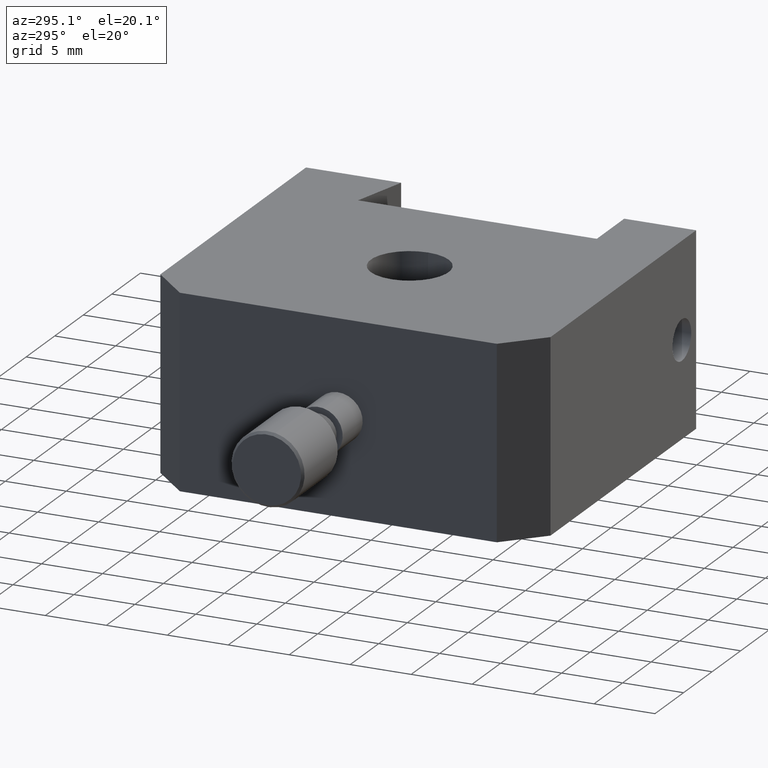
[diagram: clean part render]
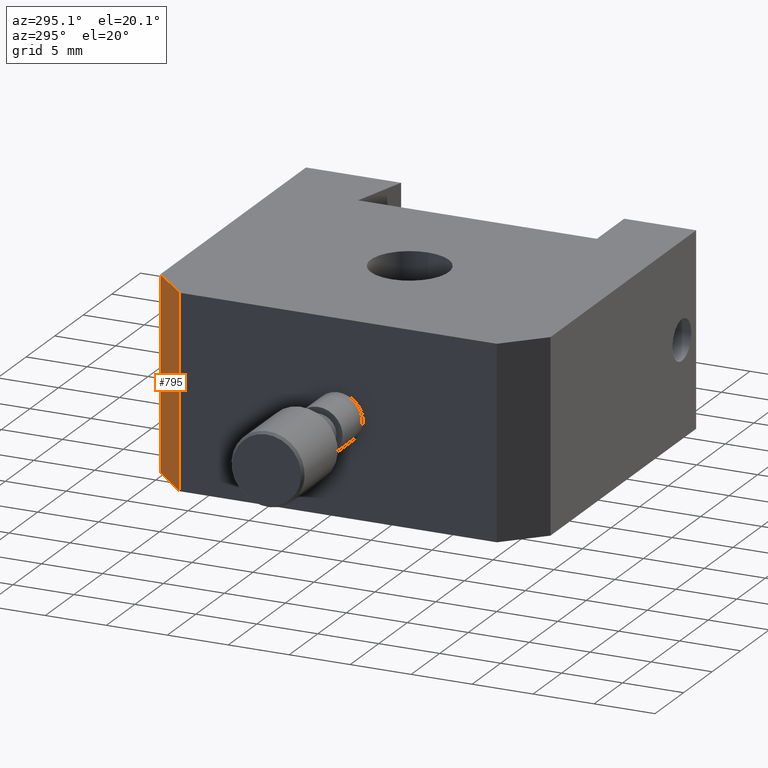
[diagram: same view with one face highlighted and labeled with its STEP entity id]
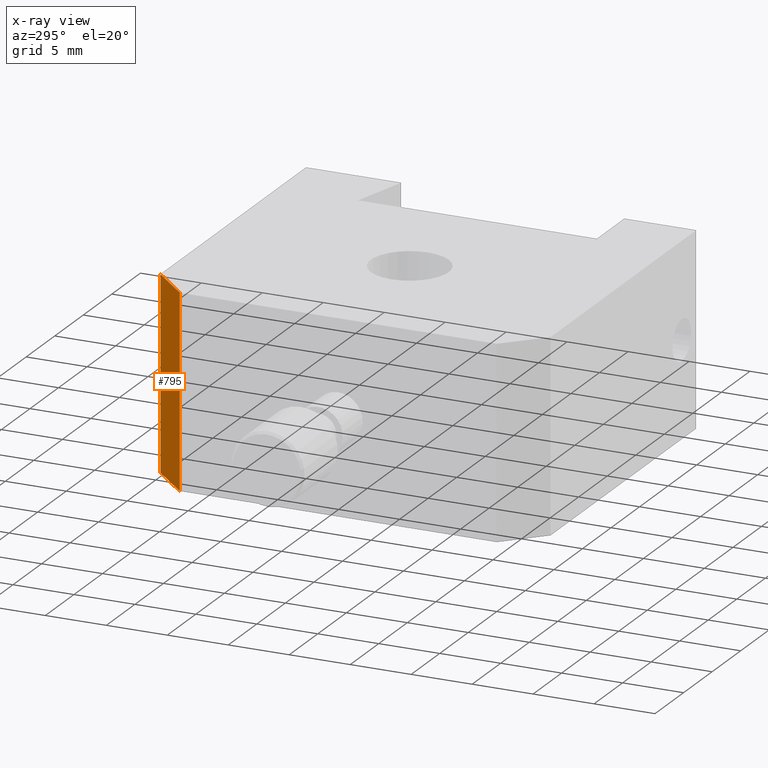
[diagram: x-ray of the same camera — body ghosted, the highlighted face saturated]
A machine part, auxiliary view. The second image highlights one B-rep face of the part: STEP entity #795.
The next image is the same camera in x-ray: the body ghosted, the highlighted face saturated — about 0% of this face is hidden behind the body in this view.
In plain terms, the highlighted planar face has unit normal (0.7071, -0.7071, 0).
Its self-contained STEP definition (entity closure, byte-faithful):
#15 = EDGE_CURVE ( 'NONE', #882, #868, #842, .T. ) ;
#20 = DIRECTION ( 'NONE',  ( 0.0000000000000000000, 0.0000000000000000000, -1.000000000000000000 ) ) ;
#42 = DIRECTION ( 'NONE',  ( 0.0000000000000000000, 0.0000000000000000000, 1.000000000000000000 ) ) ;
#94 = ORIENTED_EDGE ( 'NONE', *, *, #292, .F. ) ;
#138 = DIRECTION ( 'NONE',  ( -0.7071067811865491300, -0.7071067811865459100, -0.0000000000000000000 ) ) ;
#157 = VECTOR ( 'NONE', #138, 1000.000000000000000 ) ;
#175 = LINE ( 'NONE', #751, #157 ) ;
#192 = LINE ( 'NONE', #513, #731 ) ;
#236 = CARTESIAN_POINT ( 'NONE',  ( -18.47347206599175400, 11.40019997500334800, 24.15000000000000200 ) ) ;
#237 = LINE ( 'NONE', #236, #636 ) ;
#259 = FACE_OUTER_BOUND ( 'NONE', #769, .T. ) ;
#286 = VERTEX_POINT ( 'NONE', #287 ) ;
#287 = CARTESIAN_POINT ( 'NONE',  ( -15.47347206599173800, 14.40019997500335200, 39.84999999999999400 ) ) ;
#290 = VERTEX_POINT ( 'NONE', #431 ) ;
#292 = EDGE_CURVE ( 'NONE', #290, #286, #192, .T. ) ;
#431 = CARTESIAN_POINT ( 'NONE',  ( -15.47347206599173800, 14.40019997500335200, 24.15000000000000200 ) ) ;
#497 = EDGE_CURVE ( 'NONE', #868, #290, #237, .T. ) ;
#501 = DIRECTION ( 'NONE',  ( 0.7071067811865459100, -0.7071067811865491300, 0.0000000000000000000 ) ) ;
#513 = CARTESIAN_POINT ( 'NONE',  ( -15.47347206599173800, 14.40019997500335200, 39.84999999999999400 ) ) ;
#550 = ORIENTED_EDGE ( 'NONE', *, *, #497, .F. ) ;
#555 = DIRECTION ( 'NONE',  ( 0.0000000000000000000, 0.0000000000000000000, -1.000000000000000000 ) ) ;
#573 = CARTESIAN_POINT ( 'NONE',  ( -18.47347206599175400, 11.40019997500334800, 39.84999999999999400 ) ) ;
#594 = CARTESIAN_POINT ( 'NONE',  ( -18.47347206599175400, 11.40019997500334800, 39.84999999999999400 ) ) ;
#636 = VECTOR ( 'NONE', #768, 1000.000000000000000 ) ;
#638 = AXIS2_PLACEMENT_3D ( 'NONE', #573, #501, #20 ) ;
#655 = VECTOR ( 'NONE', #555, 1000.000000000000000 ) ;
#700 = CARTESIAN_POINT ( 'NONE',  ( -18.47347206599175400, 11.40019997500334800, 39.84999999999999400 ) ) ;
#710 = ORIENTED_EDGE ( 'NONE', *, *, #904, .F. ) ;
#725 = CARTESIAN_POINT ( 'NONE',  ( -18.47347206599175400, 11.40019997500334800, 24.15000000000000200 ) ) ;
#731 = VECTOR ( 'NONE', #42, 1000.000000000000000 ) ;
#751 = CARTESIAN_POINT ( 'NONE',  ( -17.84847206599171800, 12.02519997500337800, 39.84999999999999400 ) ) ;
#768 = DIRECTION ( 'NONE',  ( 0.7071067811865491300, 0.7071067811865459100, -0.0000000000000000000 ) ) ;
#769 = EDGE_LOOP ( 'NONE', ( #710, #94, #550, #927 ) ) ;
#795 = ADVANCED_FACE ( 'NONE', ( #259 ), #960, .F. ) ;
#842 = LINE ( 'NONE', #700, #655 ) ;
#868 = VERTEX_POINT ( 'NONE', #725 ) ;
#882 = VERTEX_POINT ( 'NONE', #594 ) ;
#904 = EDGE_CURVE ( 'NONE', #286, #882, #175, .T. ) ;
#927 = ORIENTED_EDGE ( 'NONE', *, *, #15, .F. ) ;
#960 = PLANE ( 'NONE',  #638 ) ;